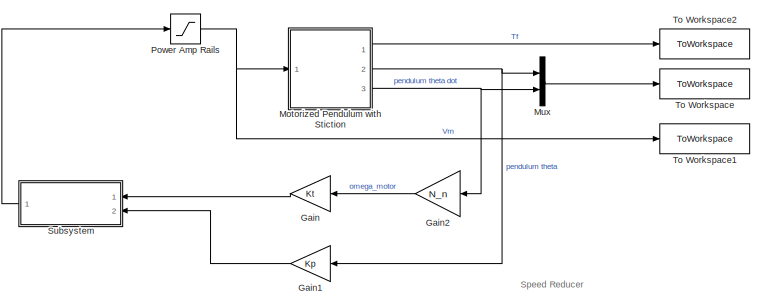
[diagram: root canvas - part 1/2, top left region]
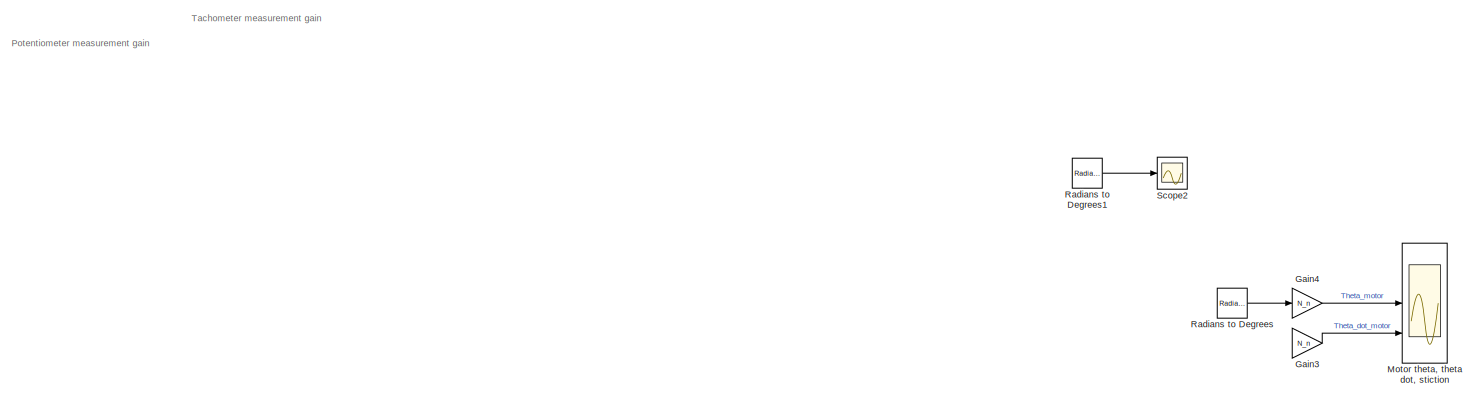
[diagram: root canvas - part 2/2, full width, bottom band]
MODEL slx_f71692e9b6bb
KIND model
CONFIG AbsTol = auto
CONFIG EnableMultiTasking = off
CONFIG FixedStep = auto
CONFIG MaxStep = 1e-4
CONFIG MinStep = 1e-6
CONFIG RelTol = 1e-9
CONFIG SampleTimeConstraint = Unconstrained
CONFIG SolverName = VariableStepAuto
CONFIG StartTime = 0.0
CONFIG StopTime = tsim
BLOCK [Gain] Gain
  Gain = Kt
  NameLocation = top
BLOCK [Gain] Gain1
  Gain = Kp
  NameLocation = top
BLOCK [Gain] Gain2
  Gain = N_n
  NameLocation = top
BLOCK [Gain] Gain3
  Commented = on
  Gain = N_n
BLOCK [Gain] Gain4
  Commented = on
  Gain = N_n
BLOCK [Scope] Motor theta, theta dot, stiction
  Commented = on
  Floating = off
  NameLocation = right
  NumInputPorts = 3
  Ports = [3]
  ScopeSpecificationString = Simulink.scopes.TimeScopeBlockCfg('CurrentConfiguration', extmgr.ConfigurationSet(extmgr.Configuration('Core','General UI',true),extmgr.Configuration('Core','Source UI',true),extmgr.Configuration('Sources','WiredSimulink',true),extmgr.Configuration('Visuals','Time Domain',true,'SerializedDisplays',{struct('MinYLimReal','-0.45069','MaxYLimReal','0.18819','YLabelReal','','MinYLimMag','0.00000','MaxY...<+2881ch>
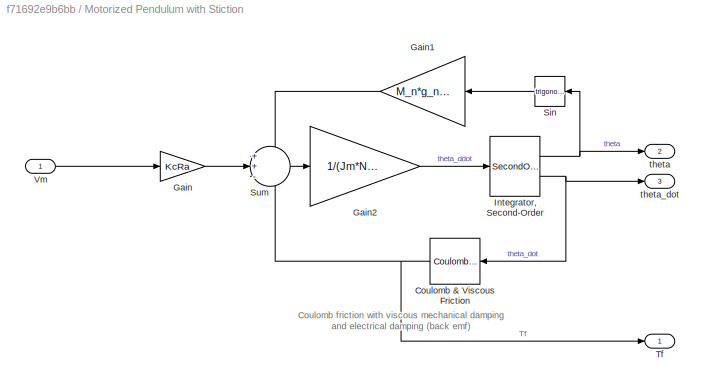
BLOCK [SubSystem] Motorized Pendulum with Stiction
  NameLocation = top
  Ports = [1, 3]
  RequestExecContextInheritance = off
BLOCK [Reference] Motorized Pendulum with Stiction/Coulomb & Viscous Friction  REF=simulink/Discontinuities/Coulomb &
Viscous Friction
  NameLocation = top
  Ports = [1, 1]
  SourceBlock = simulink/Discontinuities/Coulomb &\nViscous Friction
  SourceProductBaseCode = SL
  SourceType = Coulombic and Viscous Friction
BLOCK [Gain] Motorized Pendulum with Stiction/Gain
  Gain = KcRa
BLOCK [Gain] Motorized Pendulum with Stiction/Gain1
  Gain = M_n*g_n*L_n
BLOCK [Gain] Motorized Pendulum with Stiction/Gain2
  Gain = 1/(Jm*N_n + Jp)
BLOCK [SecondOrderIntegrator] Motorized Pendulum with Stiction/Integrator, Second-Order
  ICDXDT = x0(2)
  ICX = x0(1)
  Ports = [1, 2]
  ZeroCross = off
BLOCK [Trigonometry] Motorized Pendulum with Stiction/Sin
  NameLocation = top
  Ports = [1, 1]
BLOCK [Sum] Motorized Pendulum with Stiction/Sum
  Inputs = ++-
  Ports = [3, 1]
BLOCK [Outport] Motorized Pendulum with Stiction/Tf
BLOCK [Inport] Motorized Pendulum with Stiction/Vm
BLOCK [Outport] Motorized Pendulum with Stiction/theta
  Port = 2
BLOCK [Outport] Motorized Pendulum with Stiction/theta_dot
  Port = 3
BLOCK [Mux] Mux
  DisplayOption = bar
  Inputs = 2
  Ports = [2, 1]
BLOCK [Saturate] Power Amp Rails
  LowerLimit = -15
  UpperLimit = 15
BLOCK [Reference] Radians to Degrees  REF=simulink_extras/Transformations/Radians
to Degrees
  Commented = on
  Ports = [1, 1]
  SourceBlock = simulink_extras/Transformations/Radians\nto Degrees
  SourceProductBaseCode = SL
  SourceType = RadiansToDegrees
BLOCK [Reference] Radians to Degrees1  REF=simulink_extras/Transformations/Radians
to Degrees
  Commented = on
  Ports = [1, 1]
  SourceBlock = simulink_extras/Transformations/Radians\nto Degrees
  SourceProductBaseCode = SL
  SourceType = RadiansToDegrees
BLOCK [Scope] Scope2
  Commented = on
  Floating = off
  NumInputPorts = 1
  Ports = [1]
  ScopeSpecificationString = Simulink.scopes.TimeScopeBlockCfg('CurrentConfiguration', extmgr.ConfigurationSet(extmgr.Configuration('Core','General UI',true),extmgr.Configuration('Core','Source UI',true),extmgr.Configuration('Sources','WiredSimulink',true,'DataLoggingVariableName','ScopeData3'),extmgr.Configuration('Visuals','Time Domain',true,'SerializedDisplays',{struct('MinYLimReal','-4.29245','MaxYLimReal','67.14361','YLa...<+1482ch>
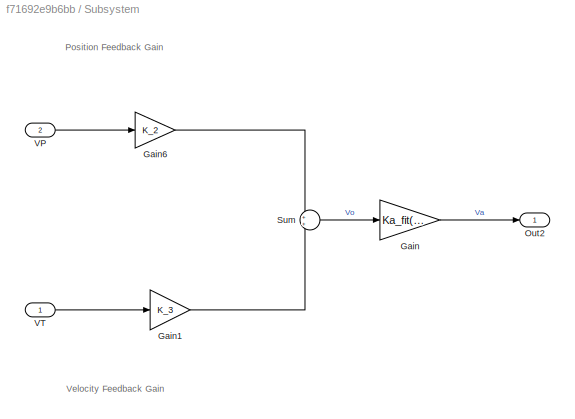
BLOCK [SubSystem] Subsystem
  NameLocation = top
  Ports = [2, 1]
  RequestExecContextInheritance = off
BLOCK [Gain] Subsystem/Gain
  Gain = Ka_fit(1)
BLOCK [Gain] Subsystem/Gain1
  Gain = K_3
BLOCK [Gain] Subsystem/Gain6
  Gain = K_2
BLOCK [Outport] Subsystem/Out2
BLOCK [Sum] Subsystem/Sum
  Ports = [2, 1]
BLOCK [Inport] Subsystem/VP
  Port = 2
BLOCK [Inport] Subsystem/VT
BLOCK [ToWorkspace] To Workspace
  FixptAsFi = on
  MaxDataPoints = inf
  Ports = [1]
  SampleTime = -1
  VariableName = x
BLOCK [ToWorkspace] To Workspace1
  FixptAsFi = on
  MaxDataPoints = inf
  Ports = [1]
  SampleTime = -1
  VariableName = vm
BLOCK [ToWorkspace] To Workspace2
  FixptAsFi = on
  MaxDataPoints = inf
  Ports = [1]
  SampleTime = -1
  VariableName = Tf
ANNOTATION (root): Potentiometer measurement gain
ANNOTATION (root): Speed Reducer
ANNOTATION (root): Tachometer measurement gain
ANNOTATION Motorized Pendulum with Stiction: Coulomb friction with viscous mechanical damping and electrical damping (back emf)
ANNOTATION Subsystem: Position Feedback Gain
ANNOTATION Subsystem: Velocity Feedback Gain
LINE Gain1:1 -> Subsystem:2
LINE Gain2:1 -> Gain:1
LINE Gain3:1 -> Motor theta, theta dot, stiction:3
LINE Gain4:1 -> Motor theta, theta dot, stiction:2
LINE Gain:1 -> Subsystem:1
NET Motorized Pendulum with Stiction/Coulomb & Viscous Friction:1 -> Motorized Pendulum with Stiction/Sum:3, Motorized Pendulum with Stiction/Tf:1
LINE Motorized Pendulum with Stiction/Gain1:1 -> Motorized Pendulum with Stiction/Sum:1
LINE Motorized Pendulum with Stiction/Gain2:1 -> Motorized Pendulum with Stiction/Integrator, Second-Order:1
LINE Motorized Pendulum with Stiction/Gain:1 -> Motorized Pendulum with Stiction/Sum:2
NET Motorized Pendulum with Stiction/Integrator, Second-Order:1 -> Motorized Pendulum with Stiction/Sin:1, Motorized Pendulum with Stiction/theta:1
NET Motorized Pendulum with Stiction/Integrator, Second-Order:2 -> Motorized Pendulum with Stiction/Coulomb & Viscous Friction:1, Motorized Pendulum with Stiction/theta_dot:1
LINE Motorized Pendulum with Stiction/Sin:1 -> Motorized Pendulum with Stiction/Gain1:1
LINE Motorized Pendulum with Stiction/Sum:1 -> Motorized Pendulum with Stiction/Gain2:1
LINE Motorized Pendulum with Stiction/Vm:1 -> Motorized Pendulum with Stiction/Gain:1
LINE Motorized Pendulum with Stiction:1 -> To Workspace2:1
NET Motorized Pendulum with Stiction:2 -> Gain1:1, Mux:1
NET Motorized Pendulum with Stiction:3 -> Gain2:1, Mux:2
LINE Mux:1 -> To Workspace:1
NET Power Amp Rails:1 -> Motorized Pendulum with Stiction:1, To Workspace1:1
LINE Radians to Degrees1:1 -> Scope2:1
LINE Radians to Degrees:1 -> Gain4:1
LINE Subsystem/Gain1:1 -> Subsystem/Sum:2
LINE Subsystem/Gain6:1 -> Subsystem/Sum:1
LINE Subsystem/Gain:1 -> Subsystem/Out2:1
LINE Subsystem/Sum:1 -> Subsystem/Gain:1
LINE Subsystem/VP:1 -> Subsystem/Gain6:1
LINE Subsystem/VT:1 -> Subsystem/Gain1:1
LINE Subsystem:1 -> Power Amp Rails:1
note: NET lines group one-source signal fan-out (src -> all destinations, sorted); 1:1 wires keep LINE
